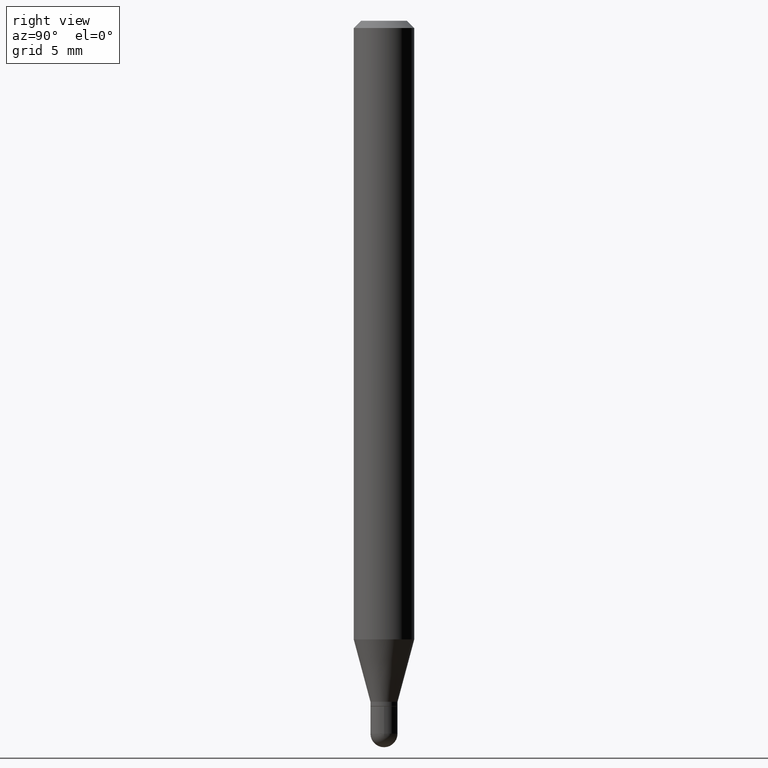
[diagram: clean part render]
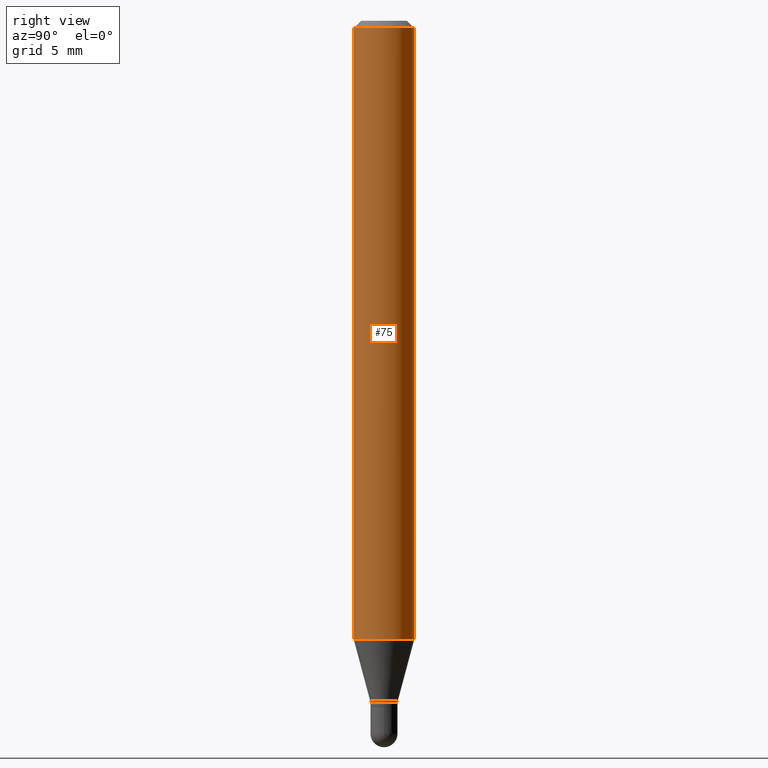
[diagram: same view with one face highlighted and labeled with its STEP entity id]
A machine part, right view. The second image highlights one B-rep face of the part: STEP entity #75.
In plain terms, the highlighted cylindrical surface (edge-blend (fillet) strip) has radius 1.5875 mm, axis along (-0, 0, 1).
Its self-contained STEP definition (entity closure, byte-faithful):
#2 = AXIS2_PLACEMENT_3D ( 'NONE', #501, #410, #339 ) ;
#17 = VECTOR ( 'NONE', #284, 39.37007874015748143 ) ;
#36 = VERTEX_POINT ( 'NONE', #89 ) ;
#39 = ORIENTED_EDGE ( 'NONE', *, *, #320, .T. ) ;
#46 = VERTEX_POINT ( 'NONE', #51 ) ;
#48 = CARTESIAN_POINT ( 'NONE',  ( -4.364351673553916201E-16, -0.06250000000000000000, 2.182173579717938261E-16 ) ) ;
#51 = CARTESIAN_POINT ( 'NONE',  ( 4.440892098500935790E-16, 0.06249999999999551747, -1.277244247138874522 ) ) ;
#52 = CARTESIAN_POINT ( 'NONE',  ( -4.364351673553912750E-16, -0.06250000000000005551, -0.01499999999999979128 ) ) ;
#56 = DIRECTION ( 'NONE',  ( -2.445471327938569020E-29, 3.491477727548701218E-15, 1.000000000000000000 ) ) ;
#67 = LINE ( 'NONE', #182, #378 ) ;
#75 = ADVANCED_FACE ( 'NONE', ( #481 ), #127, .T. ) ;
#89 = CARTESIAN_POINT ( 'NONE',  ( -4.364351673553605587E-16, -0.06250000000000446865, -1.277244247138873856 ) ) ;
#106 = VERTEX_POINT ( 'NONE', #407 ) ;
#127 = CYLINDRICAL_SURFACE ( 'NONE', #346, 0.06250000000000000000 ) ;
#130 = DIRECTION ( 'NONE',  ( -2.445471327938569020E-29, 3.491477727548701218E-15, 1.000000000000000000 ) ) ;
#153 = ORIENTED_EDGE ( 'NONE', *, *, #469, .F. ) ;
#160 = ORIENTED_EDGE ( 'NONE', *, *, #512, .T. ) ;
#174 = EDGE_LOOP ( 'NONE', ( #160, #39, #430, #153 ) ) ;
#182 = CARTESIAN_POINT ( 'NONE',  ( 4.440892098500625669E-16, 0.06250000000000000000, -2.182173579717938261E-16 ) ) ;
#186 = DIRECTION ( 'NONE',  ( -2.445471327938569020E-29, 3.491477727548701218E-15, 1.000000000000000000 ) ) ;
#219 = CIRCLE ( 'NONE', #2, 0.06250000000000000000 ) ;
#233 = CIRCLE ( 'NONE', #495, 0.06250000000000000000 ) ;
#284 = DIRECTION ( 'NONE',  ( -2.445471327938569020E-29, 3.491477727548701218E-15, 1.000000000000000000 ) ) ;
#320 = EDGE_CURVE ( 'NONE', #46, #106, #67, .T. ) ;
#330 = EDGE_CURVE ( 'NONE', #421, #106, #219, .T. ) ;
#339 = DIRECTION ( 'NONE',  ( -6.982962677686265922E-15, -1.000000000000000000, 3.483106191921935554E-15 ) ) ;
#346 = AXIS2_PLACEMENT_3D ( 'NONE', #446, #130, #439 ) ;
#378 = VECTOR ( 'NONE', #186, 39.37007874015748143 ) ;
#401 = LINE ( 'NONE', #48, #17 ) ;
#405 = CARTESIAN_POINT ( 'NONE',  ( 3.123464185152600685E-29, -4.459469841525088117E-15, -1.277244247138874078 ) ) ;
#407 = CARTESIAN_POINT ( 'NONE',  ( 4.440892098500940720E-16, 0.06249999999999995143, -0.01500000000000022669 ) ) ;
#408 = DIRECTION ( 'NONE',  ( -6.982962677686265922E-15, -1.000000000000000000, 4.370956789862821150E-15 ) ) ;
#410 = DIRECTION ( 'NONE',  ( -2.445471327938569020E-29, 3.491477727548701218E-15, 1.000000000000000000 ) ) ;
#421 = VERTEX_POINT ( 'NONE', #52 ) ;
#430 = ORIENTED_EDGE ( 'NONE', *, *, #330, .F. ) ;
#439 = DIRECTION ( 'NONE',  ( -6.982962677686265922E-15, -1.000000000000000000, 3.491477727548701218E-15 ) ) ;
#446 = CARTESIAN_POINT ( 'NONE',  ( 0.000000000000000000, 0.000000000000000000, 0.000000000000000000 ) ) ;
#469 = EDGE_CURVE ( 'NONE', #36, #421, #401, .T. ) ;
#481 = FACE_OUTER_BOUND ( 'NONE', #174, .T. ) ;
#495 = AXIS2_PLACEMENT_3D ( 'NONE', #405, #56, #408 ) ;
#501 = CARTESIAN_POINT ( 'NONE',  ( 3.668206991907855387E-31, -5.237216591323055179E-17, -0.01500000000000000812 ) ) ;
#512 = EDGE_CURVE ( 'NONE', #36, #46, #233, .T. ) ;